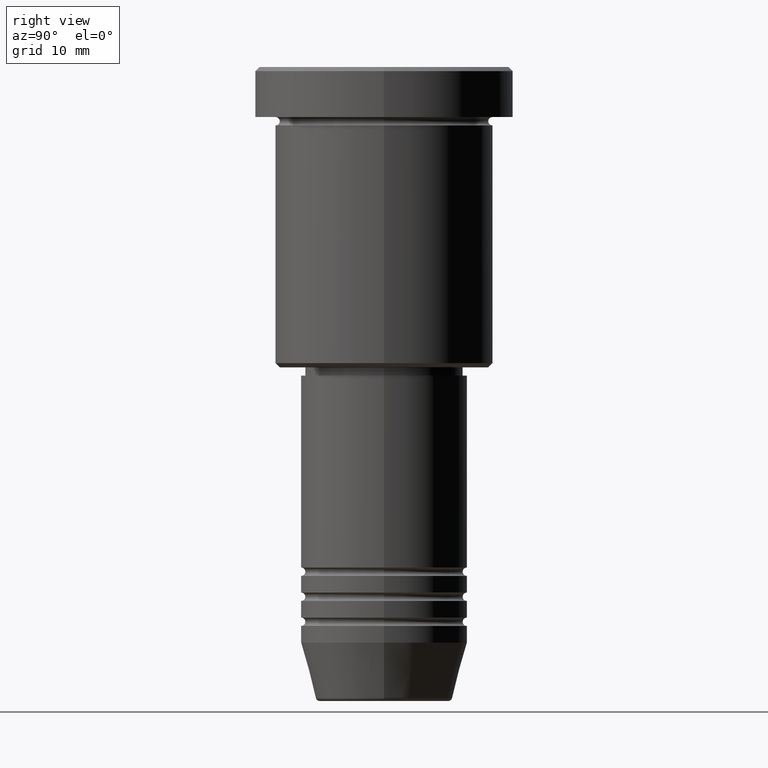
[diagram: clean part render]
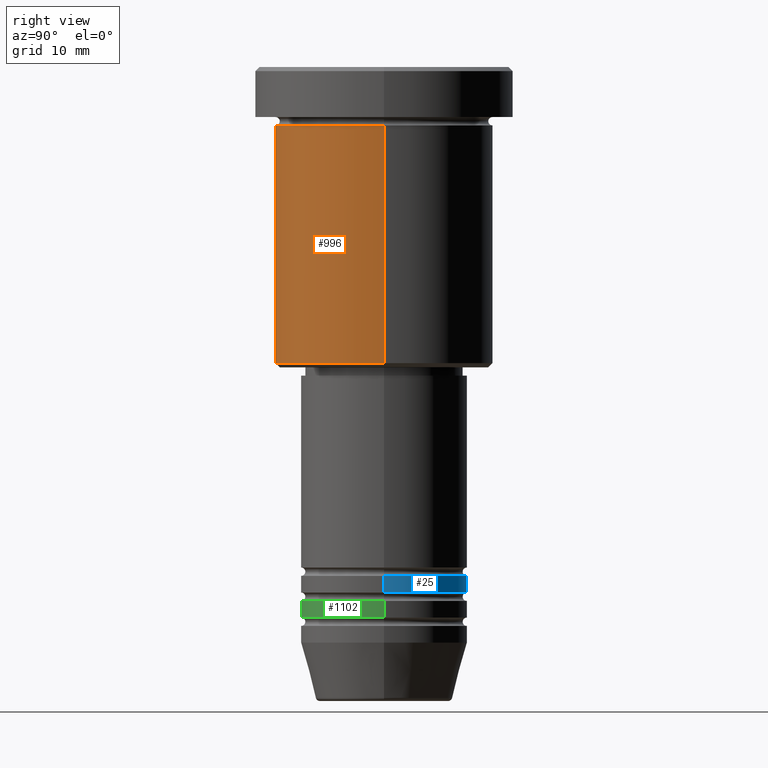
[diagram: same view with three faces highlighted in distinct colors, each labeled with its STEP entity id]
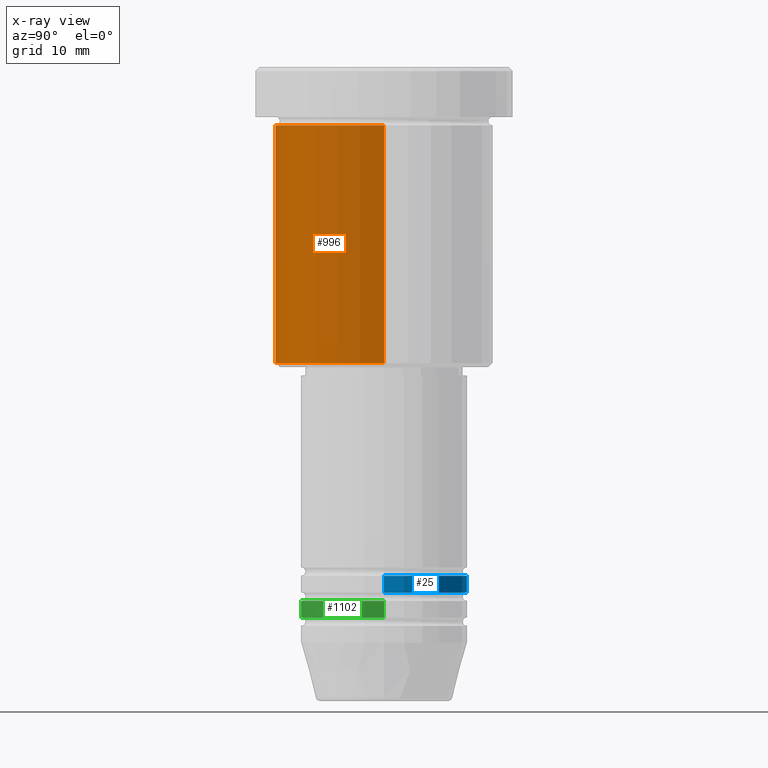
[diagram: x-ray of the same camera — body ghosted, the three highlighted faces saturated]
A machine part, right view with three faces highlighted in distinct colors.
The next image is the same camera in x-ray (body ghosted, the three faces saturated) — at least one of them is partly hidden behind the body in this view.
Their STEP definitions:

[orange] entity #996 — the highlighted cylindrical surface (partial cylindrical patch) has radius 13 mm, axis along (-0, -0, 1).
#1 = CIRCLE ( 'NONE', #238, 13.00000000000000000 ) ;
#5 = VERTEX_POINT ( 'NONE', #377 ) ;
#27 = CARTESIAN_POINT ( 'NONE',  ( 0.000000000000000000, 0.000000000000000000, -6.999999999999995559 ) ) ;
#31 = DIRECTION ( 'NONE',  ( 1.000000000000000000, 0.000000000000000000, 0.000000000000000000 ) ) ;
#47 = DIRECTION ( 'NONE',  ( -0.000000000000000000, -0.000000000000000000, 1.000000000000000000 ) ) ;
#53 = DIRECTION ( 'NONE',  ( -0.000000000000000000, -0.000000000000000000, 1.000000000000000000 ) ) ;
#82 = DIRECTION ( 'NONE',  ( -1.000000000000000000, 0.000000000000000000, 0.000000000000000000 ) ) ;
#105 = DIRECTION ( 'NONE',  ( -0.000000000000000000, -0.000000000000000000, 1.000000000000000000 ) ) ;
#166 = CYLINDRICAL_SURFACE ( 'NONE', #410, 13.00000000000000000 ) ;
#200 = CARTESIAN_POINT ( 'NONE',  ( 13.00000000000000000, 0.000000000000000000, -6.999999999999995559 ) ) ;
#229 = CARTESIAN_POINT ( 'NONE',  ( -13.00000000000000000, 1.592040838891559095E-15, -35.50000000000000711 ) ) ;
#238 = AXIS2_PLACEMENT_3D ( 'NONE', #27, #53, #31 ) ;
#250 = DIRECTION ( 'NONE',  ( 1.000000000000000000, 0.000000000000000000, 0.000000000000000000 ) ) ;
#294 = DIRECTION ( 'NONE',  ( -0.000000000000000000, -0.000000000000000000, 1.000000000000000000 ) ) ;
#316 = ORIENTED_EDGE ( 'NONE', *, *, #583, .F. ) ;
#328 = EDGE_CURVE ( 'NONE', #537, #5, #905, .T. ) ;
#331 = AXIS2_PLACEMENT_3D ( 'NONE', #545, #911, #82 ) ;
#366 = ORIENTED_EDGE ( 'NONE', *, *, #981, .T. ) ;
#377 = CARTESIAN_POINT ( 'NONE',  ( -13.00000000000000000, 1.592040838891559095E-15, -6.999999999999995559 ) ) ;
#410 = AXIS2_PLACEMENT_3D ( 'NONE', #894, #47, #250 ) ;
#435 = ORIENTED_EDGE ( 'NONE', *, *, #841, .T. ) ;
#496 = CARTESIAN_POINT ( 'NONE',  ( 13.00000000000000000, 0.000000000000000000, -35.50000000000000711 ) ) ;
#529 = FACE_OUTER_BOUND ( 'NONE', #674, .T. ) ;
#537 = VERTEX_POINT ( 'NONE', #229 ) ;
#545 = CARTESIAN_POINT ( 'NONE',  ( 0.000000000000000000, 0.000000000000000000, -35.50000000000000711 ) ) ;
#583 = EDGE_CURVE ( 'NONE', #5, #915, #1, .T. ) ;
#636 = ORIENTED_EDGE ( 'NONE', *, *, #328, .F. ) ;
#674 = EDGE_LOOP ( 'NONE', ( #636, #435, #366, #316 ) ) ;
#751 = LINE ( 'NONE', #951, #830 ) ;
#830 = VECTOR ( 'NONE', #294, 1000.000000000000000 ) ;
#841 = EDGE_CURVE ( 'NONE', #537, #857, #852, .T. ) ;
#850 = CARTESIAN_POINT ( 'NONE',  ( -13.00000000000000000, 1.592040838891559095E-15, 0.000000000000000000 ) ) ;
#852 = CIRCLE ( 'NONE', #331, 13.00000000000000000 ) ;
#857 = VERTEX_POINT ( 'NONE', #496 ) ;
#894 = CARTESIAN_POINT ( 'NONE',  ( 0.000000000000000000, 0.000000000000000000, 0.000000000000000000 ) ) ;
#905 = LINE ( 'NONE', #850, #925 ) ;
#911 = DIRECTION ( 'NONE',  ( -0.000000000000000000, -0.000000000000000000, 1.000000000000000000 ) ) ;
#915 = VERTEX_POINT ( 'NONE', #200 ) ;
#925 = VECTOR ( 'NONE', #105, 1000.000000000000000 ) ;
#951 = CARTESIAN_POINT ( 'NONE',  ( 13.00000000000000000, 0.000000000000000000, 0.000000000000000000 ) ) ;
#981 = EDGE_CURVE ( 'NONE', #857, #915, #751, .T. ) ;
#996 = ADVANCED_FACE ( 'NONE', ( #529 ), #166, .T. ) ;

[blue] entity #25 — the highlighted cylindrical surface (partial cylindrical patch) has radius 10 mm, axis along (-0, -0, 1).
#24 = FACE_OUTER_BOUND ( 'NONE', #494, .T. ) ;
#25 = ADVANCED_FACE ( 'NONE', ( #24 ), #1117, .T. ) ;
#40 = CARTESIAN_POINT ( 'NONE',  ( -10.00000000000000000, 1.224646799147353256E-15, 0.000000000000000000 ) ) ;
#106 = CARTESIAN_POINT ( 'NONE',  ( 0.000000000000000000, 0.000000000000000000, 0.000000000000000000 ) ) ;
#179 = CARTESIAN_POINT ( 'NONE',  ( -10.00000000000000000, 1.224646799147353256E-15, -60.99999999999998579 ) ) ;
#184 = CIRCLE ( 'NONE', #878, 10.00000000000000000 ) ;
#193 = VERTEX_POINT ( 'NONE', #1077 ) ;
#196 = ORIENTED_EDGE ( 'NONE', *, *, #753, .F. ) ;
#239 = LINE ( 'NONE', #514, #1055 ) ;
#275 = VERTEX_POINT ( 'NONE', #179 ) ;
#289 = DIRECTION ( 'NONE',  ( 1.000000000000000000, 0.000000000000000000, 0.000000000000000000 ) ) ;
#370 = DIRECTION ( 'NONE',  ( 1.000000000000000000, 0.000000000000000000, 0.000000000000000000 ) ) ;
#390 = ORIENTED_EDGE ( 'NONE', *, *, #599, .F. ) ;
#393 = DIRECTION ( 'NONE',  ( -0.000000000000000000, -0.000000000000000000, 1.000000000000000000 ) ) ;
#418 = DIRECTION ( 'NONE',  ( -0.000000000000000000, -0.000000000000000000, 1.000000000000000000 ) ) ;
#493 = DIRECTION ( 'NONE',  ( -0.000000000000000000, -0.000000000000000000, 1.000000000000000000 ) ) ;
#494 = EDGE_LOOP ( 'NONE', ( #616, #1023, #196, #390 ) ) ;
#514 = CARTESIAN_POINT ( 'NONE',  ( 10.00000000000000000, 0.000000000000000000, 0.000000000000000000 ) ) ;
#543 = DIRECTION ( 'NONE',  ( -0.000000000000000000, -0.000000000000000000, 1.000000000000000000 ) ) ;
#563 = EDGE_CURVE ( 'NONE', #1177, #275, #594, .T. ) ;
#591 = AXIS2_PLACEMENT_3D ( 'NONE', #733, #835, #370 ) ;
#594 = LINE ( 'NONE', #40, #1036 ) ;
#599 = EDGE_CURVE ( 'NONE', #1016, #193, #239, .T. ) ;
#616 = ORIENTED_EDGE ( 'NONE', *, *, #1161, .T. ) ;
#655 = CARTESIAN_POINT ( 'NONE',  ( -10.00000000000000000, 1.224646799147353256E-15, -62.99999999999998579 ) ) ;
#733 = CARTESIAN_POINT ( 'NONE',  ( 0.000000000000000000, 0.000000000000000000, -60.99999999999998579 ) ) ;
#735 = AXIS2_PLACEMENT_3D ( 'NONE', #106, #393, #289 ) ;
#743 = DIRECTION ( 'NONE',  ( 1.000000000000000000, 0.000000000000000000, 0.000000000000000000 ) ) ;
#753 = EDGE_CURVE ( 'NONE', #193, #275, #798, .T. ) ;
#797 = CARTESIAN_POINT ( 'NONE',  ( 10.00000000000000000, 0.000000000000000000, -62.99999999999998579 ) ) ;
#798 = CIRCLE ( 'NONE', #591, 10.00000000000000000 ) ;
#835 = DIRECTION ( 'NONE',  ( -0.000000000000000000, -0.000000000000000000, 1.000000000000000000 ) ) ;
#878 = AXIS2_PLACEMENT_3D ( 'NONE', #1169, #543, #743 ) ;
#1016 = VERTEX_POINT ( 'NONE', #797 ) ;
#1023 = ORIENTED_EDGE ( 'NONE', *, *, #563, .T. ) ;
#1036 = VECTOR ( 'NONE', #493, 1000.000000000000000 ) ;
#1055 = VECTOR ( 'NONE', #418, 1000.000000000000000 ) ;
#1077 = CARTESIAN_POINT ( 'NONE',  ( 10.00000000000000000, 0.000000000000000000, -60.99999999999998579 ) ) ;
#1117 = CYLINDRICAL_SURFACE ( 'NONE', #735, 10.00000000000000000 ) ;
#1161 = EDGE_CURVE ( 'NONE', #1016, #1177, #184, .T. ) ;
#1169 = CARTESIAN_POINT ( 'NONE',  ( 0.000000000000000000, 0.000000000000000000, -62.99999999999998579 ) ) ;
#1177 = VERTEX_POINT ( 'NONE', #655 ) ;

[green] entity #1102 — the highlighted cylindrical surface (partial cylindrical patch) has radius 10 mm, axis along (-0, -0, 1).
#7 = CARTESIAN_POINT ( 'NONE',  ( 0.000000000000000000, 0.000000000000000000, -63.99999999999998579 ) ) ;
#19 = AXIS2_PLACEMENT_3D ( 'NONE', #7, #374, #748 ) ;
#26 = CARTESIAN_POINT ( 'NONE',  ( 0.000000000000000000, 0.000000000000000000, -65.99999999999998579 ) ) ;
#42 = VERTEX_POINT ( 'NONE', #1129 ) ;
#122 = CIRCLE ( 'NONE', #983, 10.00000000000000000 ) ;
#152 = DIRECTION ( 'NONE',  ( 1.000000000000000000, 0.000000000000000000, 0.000000000000000000 ) ) ;
#159 = VECTOR ( 'NONE', #725, 1000.000000000000000 ) ;
#195 = CARTESIAN_POINT ( 'NONE',  ( -10.00000000000000000, 1.224646799147353256E-15, -63.99999999999998579 ) ) ;
#255 = EDGE_CURVE ( 'NONE', #321, #1135, #1081, .T. ) ;
#276 = CARTESIAN_POINT ( 'NONE',  ( 10.00000000000000000, 0.000000000000000000, -63.99999999999998579 ) ) ;
#281 = ORIENTED_EDGE ( 'NONE', *, *, #452, .F. ) ;
#321 = VERTEX_POINT ( 'NONE', #539 ) ;
#345 = VECTOR ( 'NONE', #560, 1000.000000000000000 ) ;
#364 = ORIENTED_EDGE ( 'NONE', *, *, #771, .F. ) ;
#374 = DIRECTION ( 'NONE',  ( -0.000000000000000000, -0.000000000000000000, 1.000000000000000000 ) ) ;
#407 = VERTEX_POINT ( 'NONE', #195 ) ;
#422 = CYLINDRICAL_SURFACE ( 'NONE', #512, 10.00000000000000000 ) ;
#452 = EDGE_CURVE ( 'NONE', #42, #407, #1014, .T. ) ;
#462 = EDGE_LOOP ( 'NONE', ( #281, #949, #607, #364 ) ) ;
#512 = AXIS2_PLACEMENT_3D ( 'NONE', #959, #971, #152 ) ;
#539 = CARTESIAN_POINT ( 'NONE',  ( 10.00000000000000000, 0.000000000000000000, -65.99999999999998579 ) ) ;
#560 = DIRECTION ( 'NONE',  ( -0.000000000000000000, -0.000000000000000000, 1.000000000000000000 ) ) ;
#567 = CARTESIAN_POINT ( 'NONE',  ( -10.00000000000000000, 1.224646799147353256E-15, 0.000000000000000000 ) ) ;
#569 = CIRCLE ( 'NONE', #19, 10.00000000000000000 ) ;
#607 = ORIENTED_EDGE ( 'NONE', *, *, #255, .T. ) ;
#664 = DIRECTION ( 'NONE',  ( -0.000000000000000000, -0.000000000000000000, 1.000000000000000000 ) ) ;
#725 = DIRECTION ( 'NONE',  ( -0.000000000000000000, -0.000000000000000000, 1.000000000000000000 ) ) ;
#748 = DIRECTION ( 'NONE',  ( 1.000000000000000000, 0.000000000000000000, 0.000000000000000000 ) ) ;
#768 = DIRECTION ( 'NONE',  ( 1.000000000000000000, 0.000000000000000000, 0.000000000000000000 ) ) ;
#771 = EDGE_CURVE ( 'NONE', #407, #1135, #569, .T. ) ;
#944 = EDGE_CURVE ( 'NONE', #42, #321, #122, .T. ) ;
#949 = ORIENTED_EDGE ( 'NONE', *, *, #944, .T. ) ;
#959 = CARTESIAN_POINT ( 'NONE',  ( 0.000000000000000000, 0.000000000000000000, 0.000000000000000000 ) ) ;
#971 = DIRECTION ( 'NONE',  ( -0.000000000000000000, -0.000000000000000000, 1.000000000000000000 ) ) ;
#983 = AXIS2_PLACEMENT_3D ( 'NONE', #26, #664, #768 ) ;
#997 = CARTESIAN_POINT ( 'NONE',  ( 10.00000000000000000, 0.000000000000000000, 0.000000000000000000 ) ) ;
#1014 = LINE ( 'NONE', #567, #345 ) ;
#1062 = FACE_OUTER_BOUND ( 'NONE', #462, .T. ) ;
#1081 = LINE ( 'NONE', #997, #159 ) ;
#1102 = ADVANCED_FACE ( 'NONE', ( #1062 ), #422, .T. ) ;
#1129 = CARTESIAN_POINT ( 'NONE',  ( -10.00000000000000000, 1.224646799147353256E-15, -65.99999999999998579 ) ) ;
#1135 = VERTEX_POINT ( 'NONE', #276 ) ;